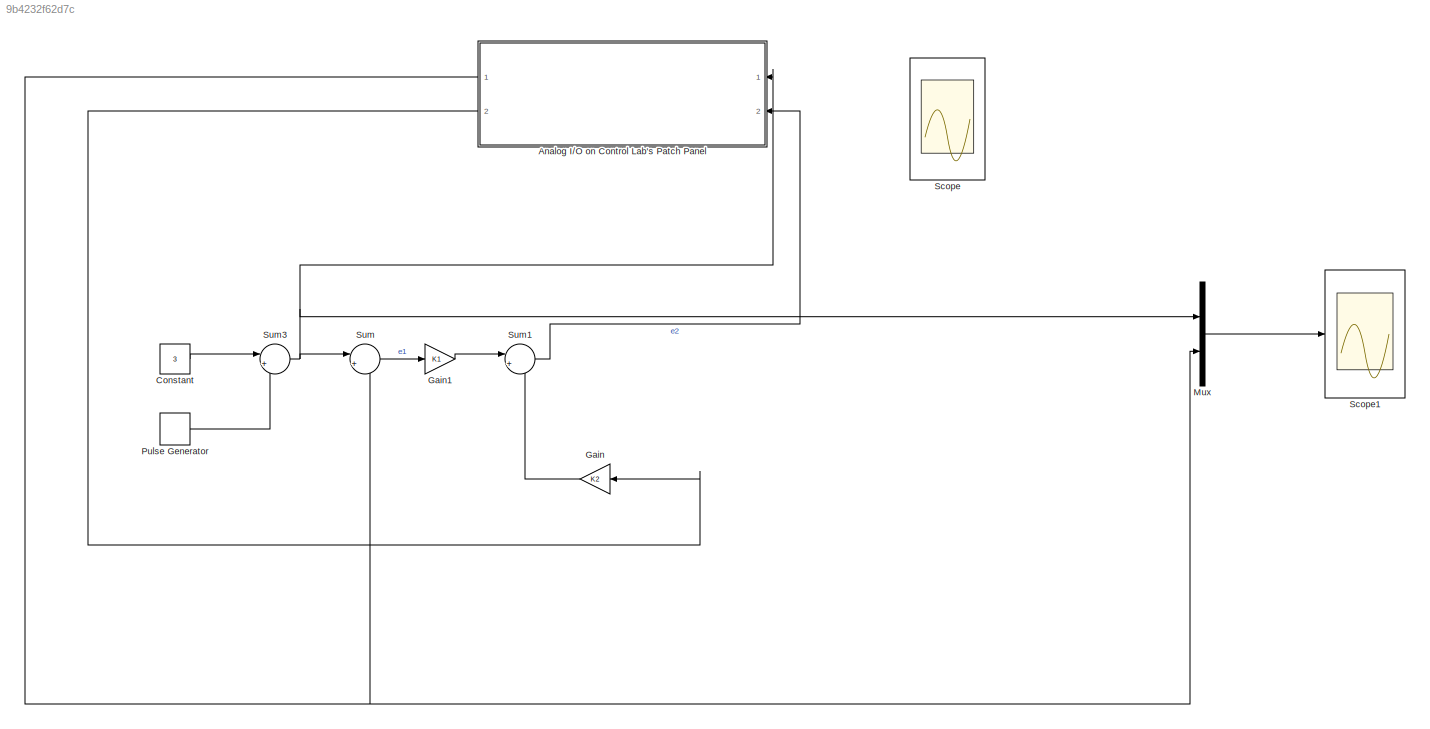
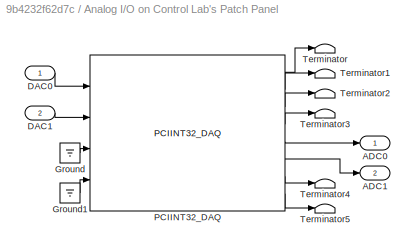
MODEL slx_9b4232f62d7c
KIND model
CONFIG AbsTol = auto
CONFIG EnableMultiTasking = on
CONFIG FixedStep = auto
CONFIG MaxStep = auto
CONFIG MinStep = auto
CONFIG RelTol = 1e-3
CONFIG SampleTimeConstraint = Unconstrained
CONFIG Solver = ode45
CONFIG SolverName = ode45
CONFIG StartTime = 0.0
CONFIG StopTime = 10.0
BLOCK [SubSystem] Analog I//O on Control Lab's Patch Panel
  Description = Gives access to the Analog I/O ports on the patch panel used at UIUC's control labs.  Connects your digital controller to the analog I/O panel.  You can read in analog data through the ADCs (analog input) and output data using the DACs (analog output)
  Ports = [2, 2]
  RequestExecContextInheritance = off
  Variant = off
BLOCK [Outport] Analog I//O on Control Lab's Patch Panel/ADC0
  IconDisplay = Port number
BLOCK [Outport] Analog I//O on Control Lab's Patch Panel/ADC1
  IconDisplay = Port number
  Port = 2
BLOCK [Inport] Analog I//O on Control Lab's Patch Panel/DAC0
  IconDisplay = Port number
BLOCK [Inport] Analog I//O on Control Lab's Patch Panel/DAC1
  IconDisplay = Port number
  Port = 2
BLOCK [Ground] Analog I//O on Control Lab's Patch Panel/Ground
BLOCK [Ground] Analog I//O on Control Lab's Patch Panel/Ground1
BLOCK [Reference] Analog I//O on Control Lab's Patch Panel/PCIINT32_DAQ  REF=coecsllib/Control Systems Lab
Board Series/PCIINT32_DAQ
  Ports = [4, 8]
  SourceBlock = coecsllib/Control Systems Lab\nBoard Series/PCIINT32_DAQ
  SourceType = Encoder/ADC/DAC Input/Output Module
BLOCK [Terminator] Analog I//O on Control Lab's Patch Panel/Terminator
BLOCK [Terminator] Analog I//O on Control Lab's Patch Panel/Terminator1
BLOCK [Terminator] Analog I//O on Control Lab's Patch Panel/Terminator2
BLOCK [Terminator] Analog I//O on Control Lab's Patch Panel/Terminator3
BLOCK [Terminator] Analog I//O on Control Lab's Patch Panel/Terminator4
BLOCK [Terminator] Analog I//O on Control Lab's Patch Panel/Terminator5
BLOCK [Constant] Constant
  Value = 3
BLOCK [Gain] Gain
  Gain = K2
  OutDataTypeStr = Inherit: Inherit via internal rule
  ParamDataTypeStr = Inherit: Inherit via internal rule
  SaturateOnIntegerOverflow = off
BLOCK [Gain] Gain1
  Gain = K1
  OutDataTypeStr = Inherit: Inherit via internal rule
  ParamDataTypeStr = Inherit: Inherit via internal rule
  SaturateOnIntegerOverflow = off
BLOCK [Mux] Mux
  DisplayOption = bar
  Inputs = 2
  Ports = [2, 1]
BLOCK [DiscretePulseGenerator] Pulse Generator
  Amplitude = 2
  Ports = [0, 1]
  PulseType = Time based
  PulseWidth = 50
BLOCK [Scope] Scope
  ExtModeLoggingTrig = on
  ExtModeUploadOption = log
  NumInputPorts = 2
  Ports = [2]
  ScopeSpecificationString = Simulink.scopes.TimeScopeBlockCfg('CurrentConfiguration', extmgr.ConfigurationSet(extmgr.Configuration('Core','General UI',true),extmgr.Configuration('Core','Source UI',true),extmgr.Configuration('Sources','WiredSimulink',true,'DataLoggingSaveFormat','Structure','DataLoggingDecimation','1','DataLoggingDecimateData',true),extmgr.Configuration('Visuals','Time Domain',true,'SerializedDisplays',{struc...<+2344ch>
BLOCK [Scope] Scope1
  NumInputPorts = 1
  Ports = [1]
  ScopeSpecificationString = Simulink.scopes.TimeScopeBlockCfg('CurrentConfiguration', extmgr.ConfigurationSet(extmgr.Configuration('Core','General UI',true),extmgr.Configuration('Core','Source UI',true),extmgr.Configuration('Sources','WiredSimulink',true,'DataLoggingVariableName','Scope','DataLogging',true,'DataLoggingSaveFormat','Array'),extmgr.Configuration('Visuals','Time Domain',true,'SerializedDisplays',{struct('MinYLim...<+1480ch>
BLOCK [Sum] Sum
  IconShape = round
  InputSameDT = off
  Inputs = |+-
  OutDataTypeStr = Inherit: Inherit via internal rule
  Ports = [2, 1]
  SaturateOnIntegerOverflow = off
BLOCK [Sum] Sum1
  IconShape = round
  InputSameDT = off
  Inputs = |+-
  OutDataTypeStr = Inherit: Inherit via internal rule
  Ports = [2, 1]
  SaturateOnIntegerOverflow = off
BLOCK [Sum] Sum3
  IconShape = round
  InputSameDT = off
  Inputs = |++
  OutDataTypeStr = Inherit: Inherit via internal rule
  Ports = [2, 1]
  SaturateOnIntegerOverflow = off
LINE Analog I//O on Control Lab's Patch Panel/DAC0:1 -> Analog I//O on Control Lab's Patch Panel/PCIINT32_DAQ:1
LINE Analog I//O on Control Lab's Patch Panel/DAC1:1 -> Analog I//O on Control Lab's Patch Panel/PCIINT32_DAQ:2
LINE Analog I//O on Control Lab's Patch Panel/Ground1:1 -> Analog I//O on Control Lab's Patch Panel/PCIINT32_DAQ:4
LINE Analog I//O on Control Lab's Patch Panel/Ground:1 -> Analog I//O on Control Lab's Patch Panel/PCIINT32_DAQ:3
LINE Analog I//O on Control Lab's Patch Panel/PCIINT32_DAQ:1 -> Analog I//O on Control Lab's Patch Panel/Terminator:1
LINE Analog I//O on Control Lab's Patch Panel/PCIINT32_DAQ:2 -> Analog I//O on Control Lab's Patch Panel/Terminator1:1
LINE Analog I//O on Control Lab's Patch Panel/PCIINT32_DAQ:3 -> Analog I//O on Control Lab's Patch Panel/Terminator2:1
LINE Analog I//O on Control Lab's Patch Panel/PCIINT32_DAQ:4 -> Analog I//O on Control Lab's Patch Panel/Terminator3:1
LINE Analog I//O on Control Lab's Patch Panel/PCIINT32_DAQ:5 -> Analog I//O on Control Lab's Patch Panel/ADC0:1
LINE Analog I//O on Control Lab's Patch Panel/PCIINT32_DAQ:6 -> Analog I//O on Control Lab's Patch Panel/ADC1:1
LINE Analog I//O on Control Lab's Patch Panel/PCIINT32_DAQ:7 -> Analog I//O on Control Lab's Patch Panel/Terminator4:1
LINE Analog I//O on Control Lab's Patch Panel/PCIINT32_DAQ:8 -> Analog I//O on Control Lab's Patch Panel/Terminator5:1
NET Analog I//O on Control Lab's Patch Panel:1 -> Mux:2, Sum:2
LINE Analog I//O on Control Lab's Patch Panel:2 -> Gain:1
LINE Constant:1 -> Sum3:1
LINE Gain1:1 -> Sum1:1
LINE Gain:1 -> Sum1:2
LINE Mux:1 -> Scope1:1
LINE Pulse Generator:1 -> Sum3:2
LINE Sum1:1 -> Analog I//O on Control Lab's Patch Panel:2
NET Sum3:1 -> Analog I//O on Control Lab's Patch Panel:1, Mux:1, Sum:1
LINE Sum:1 -> Gain1:1
note: NET lines group one-source signal fan-out (src -> all destinations, sorted); 1:1 wires keep LINE
